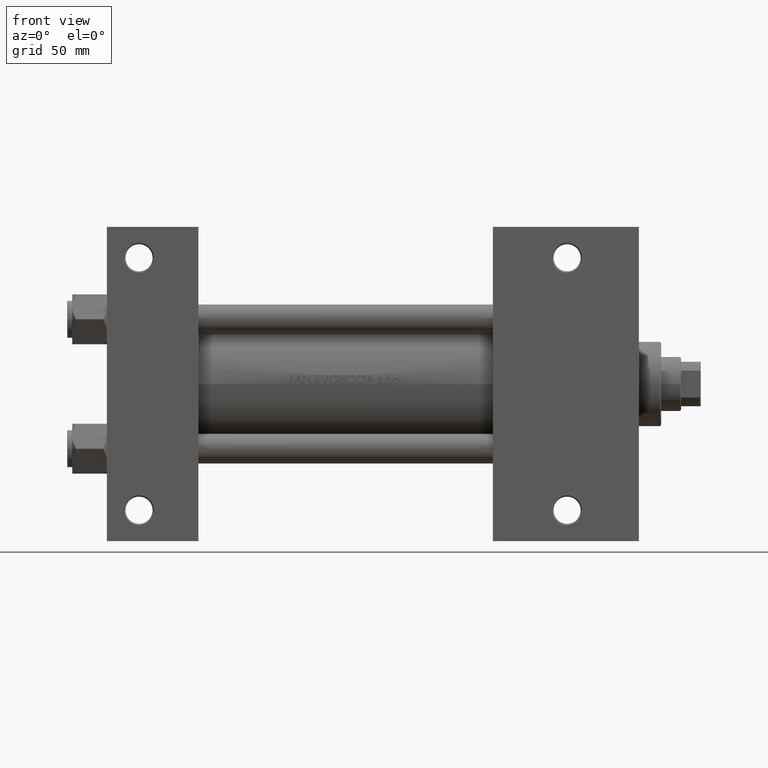
[diagram: clean part render]
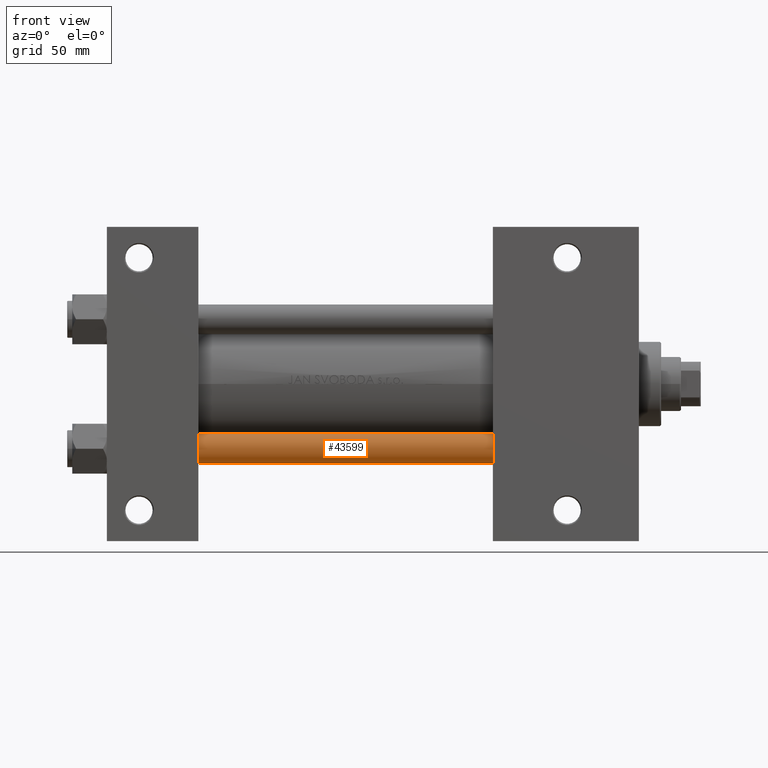
[diagram: same view with one face highlighted and labeled with its STEP entity id]
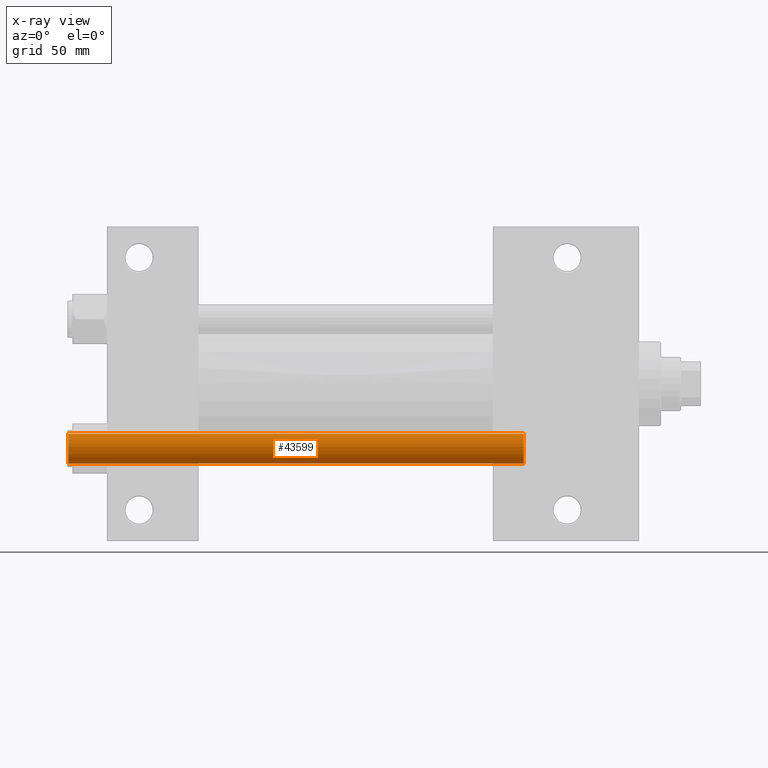
[diagram: x-ray of the same camera — body ghosted, the highlighted face saturated]
A machine part, front view. The second image highlights one B-rep face of the part: STEP entity #43599.
The next image is the same camera in x-ray: the body ghosted, the highlighted face saturated — about 0% of this face is hidden behind the body in this view.
In plain terms, the highlighted cylindrical surface (edge-blend (fillet) strip) has radius 6 mm, axis along (-1, 0, 0).
Its self-contained STEP definition (entity closure, byte-faithful):
#319 = EDGE_LOOP ( 'NONE', ( #6596, #28923, #30625, #37902 ) ) ;
#589 = CIRCLE ( 'NONE', #22057, 6.000000000000000888 ) ;
#3322 = CYLINDRICAL_SURFACE ( 'NONE', #10998, 6.000000000000000888 ) ;
#3983 = EDGE_CURVE ( 'NONE', #8545, #43575, #18943, .T. ) ;
#4629 = LINE ( 'NONE', #42992, #19943 ) ;
#5345 = FACE_OUTER_BOUND ( 'NONE', #319, .T. ) ;
#6596 = ORIENTED_EDGE ( 'NONE', *, *, #41297, .T. ) ;
#6757 = VECTOR ( 'NONE', #47644, 1000.000000000000000 ) ;
#8545 = VERTEX_POINT ( 'NONE', #33820 ) ;
#8850 = DIRECTION ( 'NONE',  ( 0.000000000000000000, 0.000000000000000000, -1.000000000000000000 ) ) ;
#10998 = AXIS2_PLACEMENT_3D ( 'NONE', #44920, #32976, #33712 ) ;
#13256 = LINE ( 'NONE', #21719, #6757 ) ;
#15854 = CARTESIAN_POINT ( 'NONE',  ( 6.000000000000000888, 7.347880794884120722E-16, 184.5000000000000000 ) ) ;
#18943 = CIRCLE ( 'NONE', #42824, 6.000000000000000888 ) ;
#19835 = DIRECTION ( 'NONE',  ( -0.000000000000000000, -0.000000000000000000, -1.000000000000000000 ) ) ;
#19837 = CARTESIAN_POINT ( 'NONE',  ( 0.000000000000000000, 0.000000000000000000, 184.5000000000000000 ) ) ;
#19943 = VECTOR ( 'NONE', #19835, 1000.000000000000000 ) ;
#20262 = VERTEX_POINT ( 'NONE', #15854 ) ;
#21516 = CARTESIAN_POINT ( 'NONE',  ( -6.000000000000000888, 0.000000000000000000, 0.5000000000000281997 ) ) ;
#21719 = CARTESIAN_POINT ( 'NONE',  ( -6.000000000000000888, 0.000000000000000000, 185.0000000000000000 ) ) ;
#22057 = AXIS2_PLACEMENT_3D ( 'NONE', #19837, #8850, #24318 ) ;
#24318 = DIRECTION ( 'NONE',  ( 1.000000000000000000, 0.000000000000000000, 0.000000000000000000 ) ) ;
#25089 = DIRECTION ( 'NONE',  ( 1.000000000000000000, 0.000000000000000000, 0.000000000000000000 ) ) ;
#27453 = EDGE_CURVE ( 'NONE', #34785, #43575, #13256, .T. ) ;
#28923 = ORIENTED_EDGE ( 'NONE', *, *, #48994, .T. ) ;
#30625 = ORIENTED_EDGE ( 'NONE', *, *, #3983, .T. ) ;
#31432 = CARTESIAN_POINT ( 'NONE',  ( -6.000000000000000888, 0.000000000000000000, 184.5000000000000000 ) ) ;
#32976 = DIRECTION ( 'NONE',  ( -0.000000000000000000, -0.000000000000000000, -1.000000000000000000 ) ) ;
#33712 = DIRECTION ( 'NONE',  ( -1.000000000000000000, 0.000000000000000000, 0.000000000000000000 ) ) ;
#33820 = CARTESIAN_POINT ( 'NONE',  ( 6.000000000000000888, 7.347880794884120722E-16, 0.5000000000000281997 ) ) ;
#34785 = VERTEX_POINT ( 'NONE', #31432 ) ;
#37902 = ORIENTED_EDGE ( 'NONE', *, *, #27453, .F. ) ;
#41197 = DIRECTION ( 'NONE',  ( -0.000000000000000000, -0.000000000000000000, 1.000000000000000000 ) ) ;
#41297 = EDGE_CURVE ( 'NONE', #34785, #20262, #589, .T. ) ;
#41689 = CARTESIAN_POINT ( 'NONE',  ( 0.000000000000000000, 0.000000000000000000, 0.5000000000000281997 ) ) ;
#42824 = AXIS2_PLACEMENT_3D ( 'NONE', #41689, #41197, #25089 ) ;
#42992 = CARTESIAN_POINT ( 'NONE',  ( 6.000000000000000888, 7.347880794884120722E-16, 185.0000000000000000 ) ) ;
#43575 = VERTEX_POINT ( 'NONE', #21516 ) ;
#43599 = ADVANCED_FACE ( 'NONE', ( #5345 ), #3322, .T. ) ;
#44920 = CARTESIAN_POINT ( 'NONE',  ( 0.000000000000000000, 0.000000000000000000, 185.0000000000000000 ) ) ;
#47644 = DIRECTION ( 'NONE',  ( -0.000000000000000000, -0.000000000000000000, -1.000000000000000000 ) ) ;
#48994 = EDGE_CURVE ( 'NONE', #20262, #8545, #4629, .T. ) ;